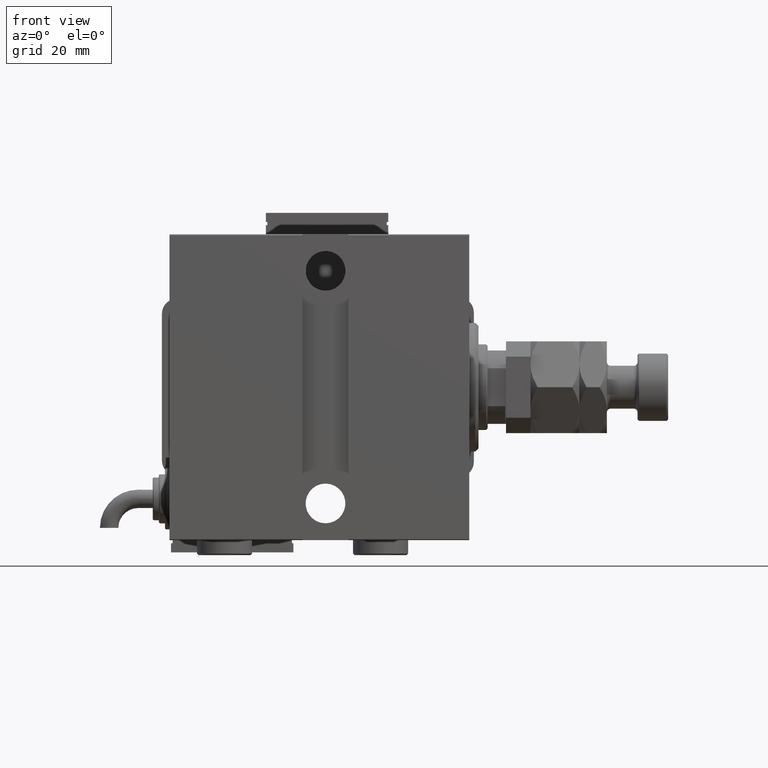
[diagram: clean part render]
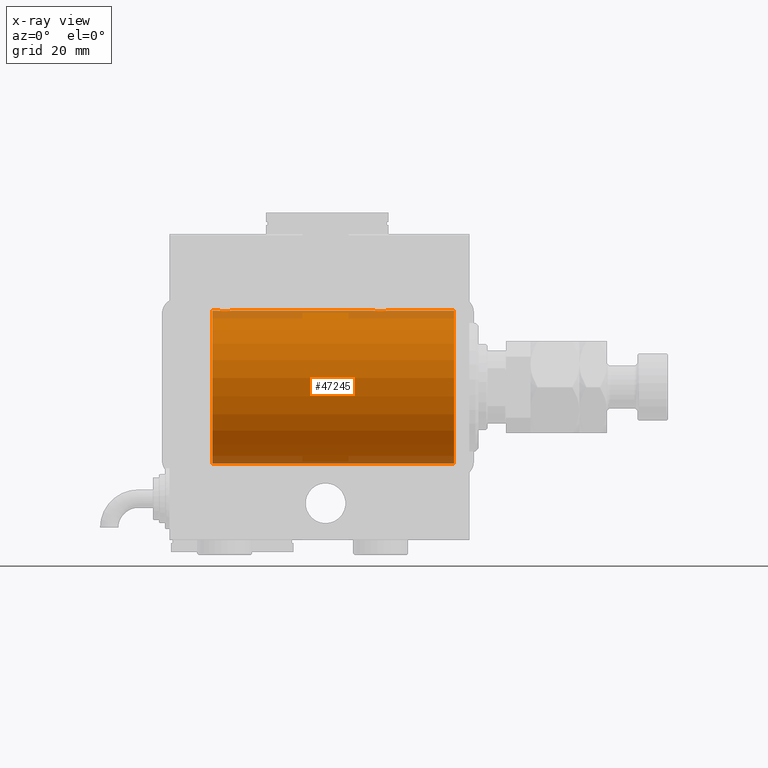
[diagram: x-ray — body ghosted, one internal face saturated and labeled with its STEP entity id]
A machine part, front view, then the same camera in x-ray: the body is ghosted and one INTERNAL B-rep face — a face not visible from any outside direction — is saturated and labeled: STEP entity #47245.
In plain terms, the highlighted cylindrical surface (partial cylindrical patch) has radius 25 mm, axis along (1, 0, -0).
Its self-contained STEP definition (entity closure, byte-faithful):
#177 = ORIENTED_EDGE ( 'NONE', *, *, #39083, .T. ) ;
#355 = VECTOR ( 'NONE', #46162, 1000.000000000000000 ) ;
#763 = CARTESIAN_POINT ( 'NONE',  ( 30.52633503512342017, 1.986787236855546368, 24.92109717386378520 ) ) ;
#1392 = CARTESIAN_POINT ( 'NONE',  ( 27.74628466518808168, 2.169035936979783585, 24.90589343070811168 ) ) ;
#2289 = CARTESIAN_POINT ( 'NONE',  ( 77.83138181747520434, 1.254434665533501914, 24.96887599906796495 ) ) ;
#2708 = AXIS2_PLACEMENT_3D ( 'NONE', #46660, #9624, #9325 ) ;
#4602 = EDGE_CURVE ( 'NONE', #53731, #27564, #35951, .T. ) ;
#4935 = AXIS2_PLACEMENT_3D ( 'NONE', #19610, #5003, #38590 ) ;
#5003 = DIRECTION ( 'NONE',  ( -1.000000000000000000, 0.000000000000000000, 0.000000000000000000 ) ) ;
#5861 = EDGE_CURVE ( 'NONE', #19607, #10275, #27195, .T. ) ;
#6040 = CARTESIAN_POINT ( 'NONE',  ( 30.25304113529935890, 2.169541443998010966, 24.90585268157805032 ) ) ;
#6650 = CARTESIAN_POINT ( 'NONE',  ( 80.16407969376739118, 2.499940606140130583, 24.87469189697261740 ) ) ;
#6947 = CARTESIAN_POINT ( 'NONE',  ( 79.19536086700188093, 2.372637051600620328, 24.88723676875458324 ) ) ;
#7858 = CARTESIAN_POINT ( 'NONE',  ( 78.89254763180203156, 2.247309494740944213, 24.89886665287247780 ) ) ;
#7951 = DIRECTION ( 'NONE',  ( -1.000000000000000000, -0.000000000000000000, -0.000000000000000000 ) ) ;
#8376 = VERTEX_POINT ( 'NONE', #34937 ) ;
#9325 = DIRECTION ( 'NONE',  ( 0.000000000000000000, 0.000000000000000000, 1.000000000000000000 ) ) ;
#9624 = DIRECTION ( 'NONE',  ( -1.000000000000000000, 0.000000000000000000, 0.000000000000000000 ) ) ;
#9784 = CARTESIAN_POINT ( 'NONE',  ( 26.62762890801418791, 0.8054273576766337595, 24.98748174524256171 ) ) ;
#10045 = ORIENTED_EDGE ( 'NONE', *, *, #4602, .T. ) ;
#10275 = VERTEX_POINT ( 'NONE', #43163 ) ;
#10535 = CARTESIAN_POINT ( 'NONE',  ( 84.00000000000000000, 3.061616997868382254E-15, -25.00000000000000000 ) ) ;
#10579 = VECTOR ( 'NONE', #45984, 1000.000000000000000 ) ;
#10926 = DIRECTION ( 'NONE',  ( 0.000000000000000000, 0.000000000000000000, 1.000000000000000000 ) ) ;
#11009 = CARTESIAN_POINT ( 'NONE',  ( 31.24651678820870515, 1.109060198064595992, 24.97584694923138215 ) ) ;
#11918 = CARTESIAN_POINT ( 'NONE',  ( 79.35125657267359145, 2.419890192637109028, 24.88262770889313558 ) ) ;
#12225 = CARTESIAN_POINT ( 'NONE',  ( 79.83773523386616944, 2.500059064463600489, 24.87467999146394604 ) ) ;
#12534 = CARTESIAN_POINT ( 'NONE',  ( 81.98824666821940355, 1.524323445682836509, 24.95385641887458661 ) ) ;
#13617 = LINE ( 'NONE', #18581, #10579 ) ;
#14209 = VERTEX_POINT ( 'NONE', #19501 ) ;
#14739 = B_SPLINE_CURVE_WITH_KNOTS ( 'NONE', 3,
 ( #55161, #30588, #16585, #49286, #45815, #21559, #26244, #12534, #25635, #31509, #20958, #40232, #50507, #49582, #39917, #58925, #6650, #12225, #45210, #11918, #6947, #7858, #30888, #44589, #25933, #54856, #44895, #2289, #21265, #20658, #39617, #59227, #49885, #59519 ),
 .UNSPECIFIED., .F., .F.,
 ( 4, 2, 2, 2, 2, 2, 2, 2, 2, 2, 2, 2, 2, 2, 2, 2, 4 ),
 ( 2.712282590340838778E-18, 0.0004888140276038966661, 0.0009776280552077907301, 0.001466442082811684035, 0.001955256110415577123, 0.002444070138019470862, 0.002932884165623363733, 0.003421698193227256605, 0.003910512220831149910, 0.004399326248435042781, 0.004888140276038936520, 0.005376954303642829391, 0.005865768331246722263, 0.006354582358850615134, 0.006843396386454508006, 0.007332210414058401744, 0.007821024441662294616 ),
 .UNSPECIFIED. ) ;
#15381 = CARTESIAN_POINT ( 'NONE',  ( 31.48376868269157214, 0.3278008924763924359, 24.99836206720143394 ) ) ;
#15677 = CARTESIAN_POINT ( 'NONE',  ( 27.34924793645206975, 1.884745564839652721, 24.92912799315484662 ) ) ;
#16160 = B_SPLINE_CURVE_WITH_KNOTS ( 'NONE', 3,
 ( #61134, #18503, #15381, #29065, #48664, #11009, #20363, #33417, #57701, #39325, #763, #6040, #57388, #38707, #19106, #33724, #53658, #43372, #29375, #43989, #34340, #38090, #1392, #58323, #15677, #24408, #25026, #53048, #24095, #9784, #43068, #53356, #19729, #47737 ),
 .UNSPECIFIED., .F., .F.,
 ( 4, 2, 2, 2, 2, 2, 2, 2, 2, 2, 2, 2, 2, 2, 2, 2, 4 ),
 ( 5.557925451109527434E-18, 0.0004888140276038975334, 0.0009776280552077896459, 0.001466442082811681216, 0.001955256110415572787, 0.002444070138019463923, 0.002932884165623355927, 0.003421698193227247064, 0.003910512220831138634, 0.004399326248435030638, 0.004888140276038921775, 0.005376954303642814646, 0.005865768331246706650, 0.006354582358850598654, 0.006843396386454489791, 0.007332210414058382662, 0.007821024441662273799 ),
 .UNSPECIFIED. ) ;
#16585 = CARTESIAN_POINT ( 'NONE',  ( 82.48376868269158990, 0.3278008924763897713, 24.99836206720143394 ) ) ;
#17579 = CARTESIAN_POINT ( 'NONE',  ( 84.00000000000000000, 3.061616997868382254E-15, -25.00000000000000000 ) ) ;
#18503 = CARTESIAN_POINT ( 'NONE',  ( 31.49999999999999289, 0.1652919547268403844, 25.00000000000000000 ) ) ;
#18581 = CARTESIAN_POINT ( 'NONE',  ( 84.00000000000000000, 0.000000000000000000, 25.00000000000000000 ) ) ;
#19014 = ORIENTED_EDGE ( 'NONE', *, *, #5861, .T. ) ;
#19106 = CARTESIAN_POINT ( 'NONE',  ( 29.64916515999327018, 2.419847904056432686, 24.88263203448061134 ) ) ;
#19501 = CARTESIAN_POINT ( 'NONE',  ( 77.50000000000001421, -1.940163953345817485E-23, 25.00000000000000000 ) ) ;
#19607 = VERTEX_POINT ( 'NONE', #42394 ) ;
#19610 = CARTESIAN_POINT ( 'NONE',  ( 5.000000000000004441, 0.000000000000000000, 0.000000000000000000 ) ) ;
#19729 = CARTESIAN_POINT ( 'NONE',  ( 26.50000000000000355, 0.1632133729155534341, 25.00000000000000355 ) ) ;
#20363 = CARTESIAN_POINT ( 'NONE',  ( 31.16970456409868362, 1.252624798282893304, 24.96896960740657789 ) ) ;
#20658 = CARTESIAN_POINT ( 'NONE',  ( 77.62762890801420212, 0.8054273576766330933, 24.98748174524255106 ) ) ;
#20958 = CARTESIAN_POINT ( 'NONE',  ( 81.52633503512342372, 1.986787236855545924, 24.92109717386377810 ) ) ;
#21265 = CARTESIAN_POINT ( 'NONE',  ( 77.75307623591049833, 1.108237982093032370, 24.97588368351298627 ) ) ;
#21307 = ORIENTED_EDGE ( 'NONE', *, *, #22596, .T. ) ;
#21559 = CARTESIAN_POINT ( 'NONE',  ( 82.24651678820872291, 1.109060198064593328, 24.97584694923138215 ) ) ;
#21646 = CARTESIAN_POINT ( 'NONE',  ( 84.00000000000000000, 0.000000000000000000, 25.00000000000000000 ) ) ;
#22524 = CARTESIAN_POINT ( 'NONE',  ( 84.00000000000000000, 0.000000000000000000, 25.00000000000000000 ) ) ;
#22596 = EDGE_CURVE ( 'NONE', #27564, #8376, #24785, .T. ) ;
#23584 = CIRCLE ( 'NONE', #2708, 25.00000000000000000 ) ;
#24095 = CARTESIAN_POINT ( 'NONE',  ( 26.75307623591046635, 1.108237982093033258, 24.97588368351298627 ) ) ;
#24408 = CARTESIAN_POINT ( 'NONE',  ( 27.11576698070013336, 1.651337078997080710, 24.94567646296264840 ) ) ;
#24785 = CIRCLE ( 'NONE', #4935, 25.00000000000000000 ) ;
#25026 = CARTESIAN_POINT ( 'NONE',  ( 27.01241165387908083, 1.525124164792365677, 24.95380474534677262 ) ) ;
#25635 = CARTESIAN_POINT ( 'NONE',  ( 81.88269712975893810, 1.652881481536634167, 24.94556728625772024 ) ) ;
#25933 = CARTESIAN_POINT ( 'NONE',  ( 78.34924793645207330, 1.884745564839651832, 24.92912799315484307 ) ) ;
#26100 = VECTOR ( 'NONE', #7951, 1000.000000000000000 ) ;
#26244 = CARTESIAN_POINT ( 'NONE',  ( 82.16970456409872270, 1.252624798282892860, 24.96896960740658500 ) ) ;
#27195 = LINE ( 'NONE', #22524, #355 ) ;
#27564 = VERTEX_POINT ( 'NONE', #43236 ) ;
#29065 = CARTESIAN_POINT ( 'NONE',  ( 31.42019035479160038, 0.6474866336855810145, 24.99212517028518832 ) ) ;
#29199 = CARTESIAN_POINT ( 'NONE',  ( 26.50000000000000355, -1.940558383798427991E-23, 25.00000000000000000 ) ) ;
#29375 = CARTESIAN_POINT ( 'NONE',  ( 28.67198227724997395, 2.483775543901335592, 24.87633190989611265 ) ) ;
#29902 = FACE_OUTER_BOUND ( 'NONE', #36980, .T. ) ;
#30588 = CARTESIAN_POINT ( 'NONE',  ( 82.50000000000001421, 0.1652919547268416056, 25.00000000000000355 ) ) ;
#30888 = CARTESIAN_POINT ( 'NONE',  ( 78.74628466518808523, 2.169035936979781365, 24.90589343070811168 ) ) ;
#31509 = CARTESIAN_POINT ( 'NONE',  ( 81.65214997850823408, 1.883339088673195327, 24.92922739080160355 ) ) ;
#31581 = EDGE_CURVE ( 'NONE', #14209, #52893, #13617, .T. ) ;
#33417 = CARTESIAN_POINT ( 'NONE',  ( 30.98824666821940355, 1.524323445682836953, 24.95385641887459016 ) ) ;
#33724 = CARTESIAN_POINT ( 'NONE',  ( 29.32637449227344817, 2.484060984458440924, 24.87630362147114127 ) ) ;
#34340 = CARTESIAN_POINT ( 'NONE',  ( 28.19536086700186317, 2.372637051600623881, 24.88723676875458324 ) ) ;
#34937 = CARTESIAN_POINT ( 'NONE',  ( 5.000000000000004441, 3.061616997868382254E-15, -25.00000000000000000 ) ) ;
#35951 = LINE ( 'NONE', #21646, #26100 ) ;
#36345 = ORIENTED_EDGE ( 'NONE', *, *, #47385, .F. ) ;
#36547 = DIRECTION ( 'NONE',  ( -1.000000000000000000, -0.000000000000000000, -0.000000000000000000 ) ) ;
#36664 = CARTESIAN_POINT ( 'NONE',  ( 31.50000000000000000, -3.363311788663921560E-15, 25.00000000000000000 ) ) ;
#36824 = VERTEX_POINT ( 'NONE', #10535 ) ;
#36980 = EDGE_LOOP ( 'NONE', ( #46514, #36345, #19014, #177, #40020, #56556, #10045, #21307 ) ) ;
#37056 = EDGE_CURVE ( 'NONE', #36824, #8376, #55529, .T. ) ;
#38090 = CARTESIAN_POINT ( 'NONE',  ( 27.89254763180204222, 2.247309494740949543, 24.89886665287248491 ) ) ;
#38221 = VECTOR ( 'NONE', #36547, 1000.000000000000000 ) ;
#38590 = DIRECTION ( 'NONE',  ( 0.000000000000000000, 0.000000000000000000, 1.000000000000000000 ) ) ;
#38707 = CARTESIAN_POINT ( 'NONE',  ( 29.80683588887133340, 2.371819214216748239, 24.88731391344729360 ) ) ;
#39083 = EDGE_CURVE ( 'NONE', #10275, #14209, #14739, .T. ) ;
#39325 = CARTESIAN_POINT ( 'NONE',  ( 30.65214997850824830, 1.883339088673197992, 24.92922739080161421 ) ) ;
#39617 = CARTESIAN_POINT ( 'NONE',  ( 77.58033563915887498, 0.6495680347195814663, 24.99207398768919219 ) ) ;
#39847 = CYLINDRICAL_SURFACE ( 'NONE', #56370, 25.00000000000000000 ) ;
#39917 = CARTESIAN_POINT ( 'NONE',  ( 80.64916515999327373, 2.419847904056426025, 24.88263203448060779 ) ) ;
#40020 = ORIENTED_EDGE ( 'NONE', *, *, #31581, .T. ) ;
#40232 = CARTESIAN_POINT ( 'NONE',  ( 81.25304113529938377, 2.169541443998010521, 24.90585268157805032 ) ) ;
#42394 = CARTESIAN_POINT ( 'NONE',  ( 84.00000000000000000, 0.000000000000000000, 25.00000000000000000 ) ) ;
#43068 = CARTESIAN_POINT ( 'NONE',  ( 26.58033563915884656, 0.6495680347195832427, 24.99207398768919575 ) ) ;
#43163 = CARTESIAN_POINT ( 'NONE',  ( 82.50000000000001421, 2.791216707898424283E-15, 25.00000000000000000 ) ) ;
#43236 = CARTESIAN_POINT ( 'NONE',  ( 5.000000000000004441, 0.000000000000000000, 25.00000000000000000 ) ) ;
#43372 = CARTESIAN_POINT ( 'NONE',  ( 28.83773523386617654, 2.500059064463603153, 24.87467999146394959 ) ) ;
#43989 = CARTESIAN_POINT ( 'NONE',  ( 28.35125657267360566, 2.419890192637116133, 24.88262770889313202 ) ) ;
#44589 = CARTESIAN_POINT ( 'NONE',  ( 78.47549655812819935, 1.988066470813636410, 24.92099187803979987 ) ) ;
#44895 = CARTESIAN_POINT ( 'NONE',  ( 78.01241165387911281, 1.525124164792365455, 24.95380474534677262 ) ) ;
#45210 = CARTESIAN_POINT ( 'NONE',  ( 79.67198227724999526, 2.483775543901331151, 24.87633190989611265 ) ) ;
#45815 = CARTESIAN_POINT ( 'NONE',  ( 82.37206391457593213, 0.8063280894284519107, 24.98745245851526420 ) ) ;
#45984 = DIRECTION ( 'NONE',  ( -1.000000000000000000, -0.000000000000000000, -0.000000000000000000 ) ) ;
#46162 = DIRECTION ( 'NONE',  ( -1.000000000000000000, -0.000000000000000000, -0.000000000000000000 ) ) ;
#46514 = ORIENTED_EDGE ( 'NONE', *, *, #37056, .F. ) ;
#46660 = CARTESIAN_POINT ( 'NONE',  ( 84.00000000000000000, 0.000000000000000000, 0.000000000000000000 ) ) ;
#47245 = ADVANCED_FACE ( 'NONE', ( #29902 ), #39847, .F. ) ;
#47385 = EDGE_CURVE ( 'NONE', #19607, #36824, #23584, .T. ) ;
#47737 = CARTESIAN_POINT ( 'NONE',  ( 26.50000000000000355, -1.940558383798427991E-23, 25.00000000000000000 ) ) ;
#48664 = CARTESIAN_POINT ( 'NONE',  ( 31.37206391457592858, 0.8063280894284537981, 24.98745245851526064 ) ) ;
#48894 = DIRECTION ( 'NONE',  ( -1.000000000000000000, -0.000000000000000000, -0.000000000000000000 ) ) ;
#49286 = CARTESIAN_POINT ( 'NONE',  ( 82.42019035479160038, 0.6474866336855787941, 24.99212517028518832 ) ) ;
#49582 = CARTESIAN_POINT ( 'NONE',  ( 80.80683588887137603, 2.371819214216743799, 24.88731391344729360 ) ) ;
#49885 = CARTESIAN_POINT ( 'NONE',  ( 77.50000000000000000, 0.1632133729155517687, 24.99999999999999645 ) ) ;
#50507 = CARTESIAN_POINT ( 'NONE',  ( 81.10765995523904337, 2.247131495942863211, 24.89888190765473652 ) ) ;
#50777 = EDGE_CURVE ( 'NONE', #52893, #53731, #16160, .T. ) ;
#52893 = VERTEX_POINT ( 'NONE', #36664 ) ;
#53048 = CARTESIAN_POINT ( 'NONE',  ( 26.83138181747519369, 1.254434665533501247, 24.96887599906796140 ) ) ;
#53356 = CARTESIAN_POINT ( 'NONE',  ( 26.51635884985689984, 0.3289998300458025771, 24.99834914448731737 ) ) ;
#53658 = CARTESIAN_POINT ( 'NONE',  ( 29.16407969376738052, 2.499940606140134136, 24.87469189697262095 ) ) ;
#53731 = VERTEX_POINT ( 'NONE', #29199 ) ;
#54856 = CARTESIAN_POINT ( 'NONE',  ( 78.11576698070011560, 1.651337078997080043, 24.94567646296264485 ) ) ;
#55161 = CARTESIAN_POINT ( 'NONE',  ( 82.50000000000001421, 2.791216707898424283E-15, 25.00000000000000000 ) ) ;
#55529 = LINE ( 'NONE', #17579, #38221 ) ;
#56370 = AXIS2_PLACEMENT_3D ( 'NONE', #58246, #48894, #10926 ) ;
#56556 = ORIENTED_EDGE ( 'NONE', *, *, #50777, .T. ) ;
#57388 = CARTESIAN_POINT ( 'NONE',  ( 30.10765995523902916, 2.247131495942866319, 24.89888190765473297 ) ) ;
#57701 = CARTESIAN_POINT ( 'NONE',  ( 30.88269712975891323, 1.652881481536637054, 24.94556728625771669 ) ) ;
#58246 = CARTESIAN_POINT ( 'NONE',  ( 84.00000000000000000, 0.000000000000000000, 0.000000000000000000 ) ) ;
#58323 = CARTESIAN_POINT ( 'NONE',  ( 27.47549655812821001, 1.988066470813638631, 24.92099187803980342 ) ) ;
#58925 = CARTESIAN_POINT ( 'NONE',  ( 80.32637449227345883, 2.484060984458436039, 24.87630362147113772 ) ) ;
#59227 = CARTESIAN_POINT ( 'NONE',  ( 77.51635884985689984, 0.3289998300458005231, 24.99834914448731737 ) ) ;
#59519 = CARTESIAN_POINT ( 'NONE',  ( 77.50000000000001421, -1.940163953345817485E-23, 25.00000000000000000 ) ) ;
#61134 = CARTESIAN_POINT ( 'NONE',  ( 31.50000000000000000, -3.363311788663921560E-15, 25.00000000000000000 ) ) ;